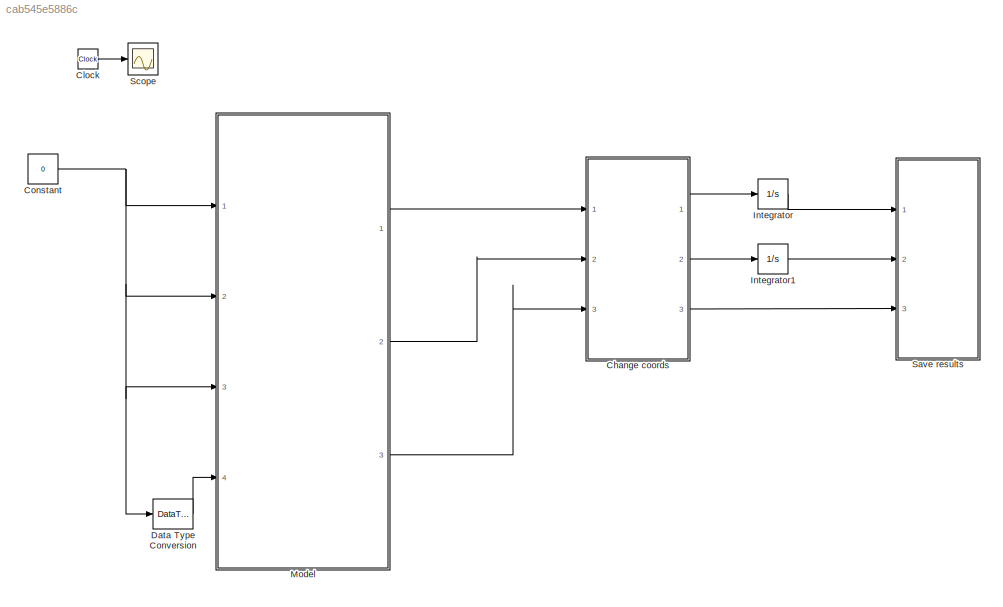
MODEL slx_cab545e5886c
KIND model
CONFIG AbsTol = auto
CONFIG EnableMultiTasking = off
CONFIG FixedStep = auto
CONFIG MaxStep = auto
CONFIG MinStep = auto
CONFIG RelTol = 1e-3
CONFIG SampleTimeConstraint = Unconstrained
CONFIG Solver = VariableStepAuto
CONFIG SolverName = VariableStepAuto
CONFIG StartTime = 0.0
CONFIG StopTime = inf
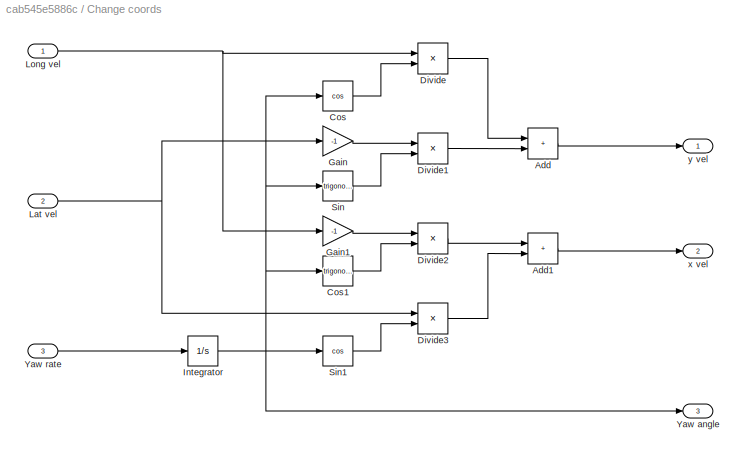
BLOCK [SubSystem] Change coords
  Ports = [3, 3]
  RequestExecContextInheritance = off
BLOCK [Sum] Change coords/Add
  IconShape = rectangular
  Ports = [2, 1]
BLOCK [Sum] Change coords/Add1
  IconShape = rectangular
  Ports = [2, 1]
BLOCK [Trigonometry] Change coords/Cos
  Operator = cos
  Ports = [1, 1]
BLOCK [Trigonometry] Change coords/Cos1
  Ports = [1, 1]
BLOCK [Product] Change coords/Divide
  Inputs = **
  Ports = [2, 1]
BLOCK [Product] Change coords/Divide1
  Inputs = **
  Ports = [2, 1]
BLOCK [Product] Change coords/Divide2
  Inputs = **
  Ports = [2, 1]
BLOCK [Product] Change coords/Divide3
  Inputs = **
  Ports = [2, 1]
BLOCK [Gain] Change coords/Gain
  Gain = -1
BLOCK [Gain] Change coords/Gain1
  Gain = -1
BLOCK [Integrator] Change coords/Integrator
  Ports = [1, 1]
BLOCK [Inport] Change coords/Lat vel
  Port = 2
BLOCK [Inport] Change coords/Long vel
BLOCK [Trigonometry] Change coords/Sin
  Ports = [1, 1]
BLOCK [Trigonometry] Change coords/Sin1
  Operator = cos
  Ports = [1, 1]
BLOCK [Outport] Change coords/Yaw angle
  Port = 3
BLOCK [Inport] Change coords/Yaw rate
  Port = 3
BLOCK [Outport] Change coords/x vel
  Port = 2
BLOCK [Outport] Change coords/y vel
BLOCK [Clock] Clock
  Decimation = 1000
BLOCK [Constant] Constant
  Value = 0
BLOCK [DataTypeConversion] Data Type Conversion
  OutDataTypeStr = int8
  RndMeth = Floor
  SaturateOnIntegerOverflow = off
BLOCK [Integrator] Integrator
  Ports = [1, 1]
BLOCK [Integrator] Integrator1
  Ports = [1, 1]
BLOCK [ModelReference] Model
  ModelNameDialog = Vehicle_Model_noLT.slx
  ModelReferenceVersion = 1.15
  Ports = [4, 3]
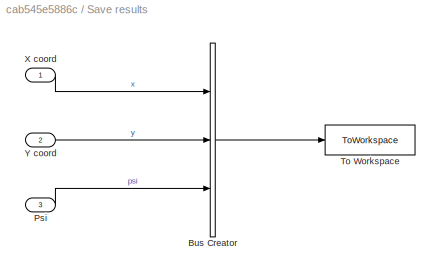
BLOCK [SubSystem] Save results
  Ports = [3]
  RequestExecContextInheritance = off
BLOCK [BusCreator] Save results/Bus Creator
  DisplayOption = bar
  InheritFromInputs = on
  Inputs = 3
  Ports = [3, 1]
BLOCK [Inport] Save results/Psi
  Port = 3
BLOCK [ToWorkspace] Save results/To Workspace
  FixptAsFi = on
  MaxDataPoints = inf
  Ports = [1]
  SampleTime = -1
  SaveFormat = Timeseries
  VariableName = simout
BLOCK [Inport] Save results/X coord
BLOCK [Inport] Save results/Y coord
  Port = 2
BLOCK [Scope] Scope
  Floating = off
  NumInputPorts = 1
  Ports = [1]
  ScopeSpecificationString = Simulink.scopes.TimeScopeBlockCfg('CurrentConfiguration', extmgr.ConfigurationSet(extmgr.Configuration('Core','General UI',true),extmgr.Configuration('Core','Source UI',true),extmgr.Configuration('Sources','WiredSimulink',true),extmgr.Configuration('Visuals','Time Domain',true),extmgr.Configuration('Tools','Plot Navigation',true),extmgr.Configuration('Tools','Measurements',true)),'Version','2020a'...<+1ch>
LINE Change coords/Add1:1 -> Change coords/x vel:1
LINE Change coords/Add:1 -> Change coords/y vel:1
LINE Change coords/Cos1:1 -> Change coords/Divide2:2
LINE Change coords/Cos:1 -> Change coords/Divide:2
LINE Change coords/Divide1:1 -> Change coords/Add:2
LINE Change coords/Divide2:1 -> Change coords/Add1:1
LINE Change coords/Divide3:1 -> Change coords/Add1:2
LINE Change coords/Divide:1 -> Change coords/Add:1
LINE Change coords/Gain1:1 -> Change coords/Divide2:1
LINE Change coords/Gain:1 -> Change coords/Divide1:1
NET Change coords/Integrator:1 -> Change coords/Cos1:1, Change coords/Cos:1, Change coords/Sin1:1, Change coords/Sin:1, Change coords/Yaw angle:1
NET Change coords/Lat vel:1 -> Change coords/Divide3:1, Change coords/Gain:1
NET Change coords/Long vel:1 -> Change coords/Divide:1, Change coords/Gain1:1
LINE Change coords/Sin1:1 -> Change coords/Divide3:2
LINE Change coords/Sin:1 -> Change coords/Divide1:2
LINE Change coords/Yaw rate:1 -> Change coords/Integrator:1
LINE Change coords:1 -> Integrator:1
LINE Change coords:2 -> Integrator1:1
LINE Change coords:3 -> Save results:3
LINE Clock:1 -> Scope:1
NET Constant:1 -> Data Type Conversion:1, Model:1, Model:2, Model:3
LINE Data Type Conversion:1 -> Model:4
LINE Integrator1:1 -> Save results:2
LINE Integrator:1 -> Save results:1
LINE Model:1 -> Change coords:1
LINE Model:2 -> Change coords:2
LINE Model:3 -> Change coords:3
LINE Save results/Bus Creator:1 -> Save results/To Workspace:1
LINE Save results/Psi:1 -> Save results/Bus Creator:3
LINE Save results/X coord:1 -> Save results/Bus Creator:1
LINE Save results/Y coord:1 -> Save results/Bus Creator:2
note: NET lines group one-source signal fan-out (src -> all destinations, sorted); 1:1 wires keep LINE
